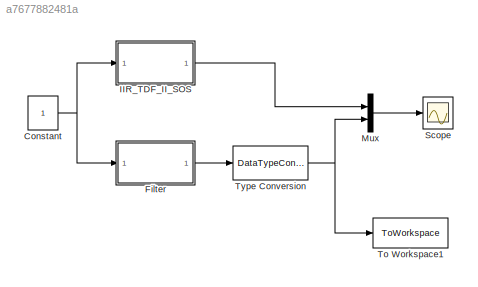
MODEL slx_a7677882481a
KIND model
BLOCK [Constant] Constant
  OutDataTypeStr = double
  SampleTime = 1/50e6
  VectorParams1D = off
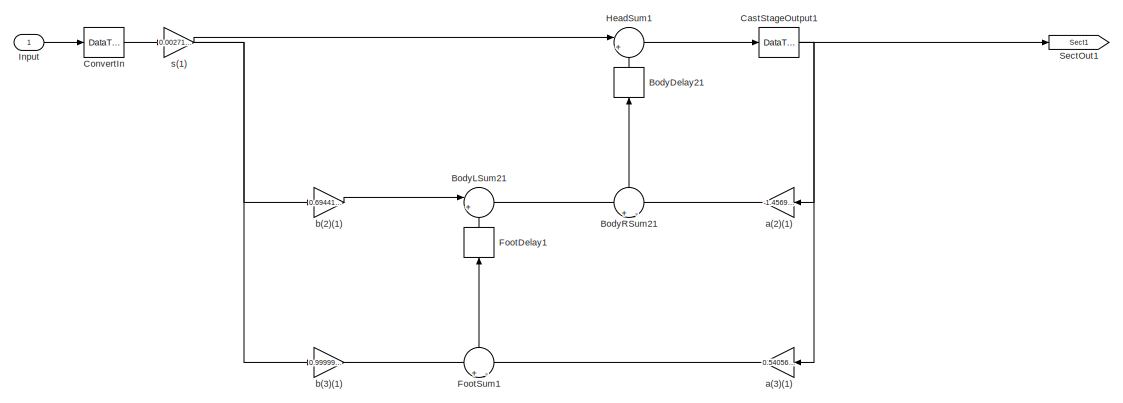
[diagram: Filter - part 1/2, left side, full height]
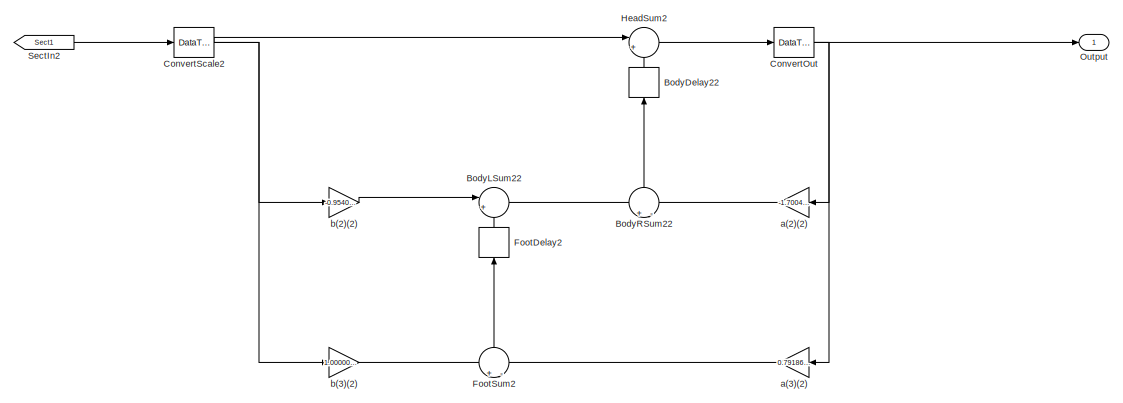
[diagram: Filter - part 2/2, right side, full height]
BLOCK [SubSystem] Filter
  ErrorFcn = dspFilterRealizedInBasicElemsAlgLoopErrFcnCallback
  FunctionWithSeparateData = off
  MaskHideContents = off
  MinAlgLoopOccurrences = off
  Opaque = off
  Ports = [1, 1]
  PropExecContextOutsideSubsystem = off
  RTWSystemCode = Auto
  RequestExecContextInheritance = off
  Tag = FilterWizardSubSystem
  UserDataPersistent = on
BLOCK [Delay] Filter/BodyDelay21
  DelayLength = 1
  InitialCondition = 0
  InputPortMap = u0
  Ports = [1, 1]
BLOCK [Delay] Filter/BodyDelay22
  DelayLength = 1
  InitialCondition = 0
  InputPortMap = u0
  Ports = [1, 1]
BLOCK [Sum] Filter/BodyLSum21
  AccumDataTypeStr = fixdt(1,28,24)
  IconShape = round
  InputSameDT = off
  Inputs = |++
  OutDataTypeStr = fixdt(1,28,24)
  Ports = [2, 1]
  SaturateOnIntegerOverflow = off
BLOCK [Sum] Filter/BodyLSum22
  AccumDataTypeStr = fixdt(1,28,24)
  IconShape = round
  InputSameDT = off
  Inputs = |++
  OutDataTypeStr = fixdt(1,28,24)
  Ports = [2, 1]
  SaturateOnIntegerOverflow = off
BLOCK [Sum] Filter/BodyRSum21
  AccumDataTypeStr = fixdt(1,28,24)
  IconShape = round
  InputSameDT = off
  Inputs = +|-
  OutDataTypeStr = fixdt(1,28,24)
  Ports = [2, 1]
  SaturateOnIntegerOverflow = off
BLOCK [Sum] Filter/BodyRSum22
  AccumDataTypeStr = fixdt(1,28,24)
  IconShape = round
  InputSameDT = off
  Inputs = +|-
  OutDataTypeStr = fixdt(1,28,24)
  Ports = [2, 1]
  SaturateOnIntegerOverflow = off
BLOCK [DataTypeConversion] Filter/CastStageOutput1
  OutDataTypeStr = fixdt(1,15,13)
  RndMeth = Floor
  SaturateOnIntegerOverflow = off
BLOCK [DataTypeConversion] Filter/ConvertIn
  OutDataTypeStr = fixdt(1,14,13)
  RndMeth = Nearest
BLOCK [DataTypeConversion] Filter/ConvertOut
  OutDataTypeStr = fixdt(1,15,13)
  RndMeth = Floor
  SaturateOnIntegerOverflow = off
BLOCK [DataTypeConversion] Filter/ConvertScale2
  OutDataTypeStr = fixdt(1,14,13)
  RndMeth = Floor
  SaturateOnIntegerOverflow = off
BLOCK [Delay] Filter/FootDelay1
  DelayLength = 1
  InitialCondition = 0
  InputPortMap = u0
  Ports = [1, 1]
BLOCK [Delay] Filter/FootDelay2
  DelayLength = 1
  InitialCondition = 0
  InputPortMap = u0
  Ports = [1, 1]
BLOCK [Sum] Filter/FootSum1
  AccumDataTypeStr = fixdt(1,28,24)
  IconShape = round
  InputSameDT = off
  Inputs = +|-
  OutDataTypeStr = fixdt(1,28,24)
  Ports = [2, 1]
  SaturateOnIntegerOverflow = off
BLOCK [Sum] Filter/FootSum2
  AccumDataTypeStr = fixdt(1,28,24)
  IconShape = round
  InputSameDT = off
  Inputs = +|-
  OutDataTypeStr = fixdt(1,28,24)
  Ports = [2, 1]
  SaturateOnIntegerOverflow = off
BLOCK [Sum] Filter/HeadSum1
  AccumDataTypeStr = fixdt(1,28,24)
  IconShape = round
  InputSameDT = off
  Inputs = |++
  OutDataTypeStr = fixdt(1,28,24)
  Ports = [2, 1]
  SaturateOnIntegerOverflow = off
BLOCK [Sum] Filter/HeadSum2
  AccumDataTypeStr = fixdt(1,28,24)
  IconShape = round
  InputSameDT = off
  Inputs = |++
  OutDataTypeStr = fixdt(1,28,24)
  Ports = [2, 1]
  SaturateOnIntegerOverflow = off
BLOCK [Inport] Filter/Input
  IconDisplay = Port number
BLOCK [Outport] Filter/Output
  IconDisplay = Port number
BLOCK [From] Filter/SectIn2
  GotoTag = Sect1
BLOCK [Goto] Filter/SectOut1
  GotoTag = Sect1
BLOCK [Gain] Filter/a(2)(1)
  Gain = -1.4569317354657079
  OutDataTypeStr = fixdt(1,28,24)
  ParamDataTypeStr = fixdt(1,13,11)
  SaturateOnIntegerOverflow = off
BLOCK [Gain] Filter/a(2)(2)
  Gain = -1.7004031510444417
  OutDataTypeStr = fixdt(1,28,24)
  ParamDataTypeStr = fixdt(1,13,11)
  SaturateOnIntegerOverflow = off
BLOCK [Gain] Filter/a(3)(1)
  Gain = 0.54056377155037727
  OutDataTypeStr = fixdt(1,28,24)
  ParamDataTypeStr = fixdt(1,13,11)
  SaturateOnIntegerOverflow = off
BLOCK [Gain] Filter/a(3)(2)
  Gain = 0.79186913438733686
  OutDataTypeStr = fixdt(1,28,24)
  ParamDataTypeStr = fixdt(1,13,11)
  SaturateOnIntegerOverflow = off
BLOCK [Gain] Filter/b(2)(1)
  Gain = 0.6944133180480101
  OutDataTypeStr = fixdt(1,28,24)
  ParamDataTypeStr = fixdt(1,13,11)
  SaturateOnIntegerOverflow = off
BLOCK [Gain] Filter/b(2)(2)
  Gain = -0.95402500633209342
  OutDataTypeStr = fixdt(1,28,24)
  ParamDataTypeStr = fixdt(1,13,11)
  SaturateOnIntegerOverflow = off
BLOCK [Gain] Filter/b(3)(1)
  Gain = 0.99999999999999845
  OutDataTypeStr = fixdt(1,28,24)
  ParamDataTypeStr = fixdt(1,13,11)
  SaturateOnIntegerOverflow = off
BLOCK [Gain] Filter/b(3)(2)
  Gain = 1.0000000000000013
  OutDataTypeStr = fixdt(1,28,24)
  ParamDataTypeStr = fixdt(1,13,11)
  SaturateOnIntegerOverflow = off
BLOCK [Gain] Filter/s(1)
  Gain = 0.0027142307074431711
  OutDataTypeStr = fixdt(1,14,13)
  ParamDataTypeStr = fixdt(1,13,12)
  SaturateOnIntegerOverflow = off
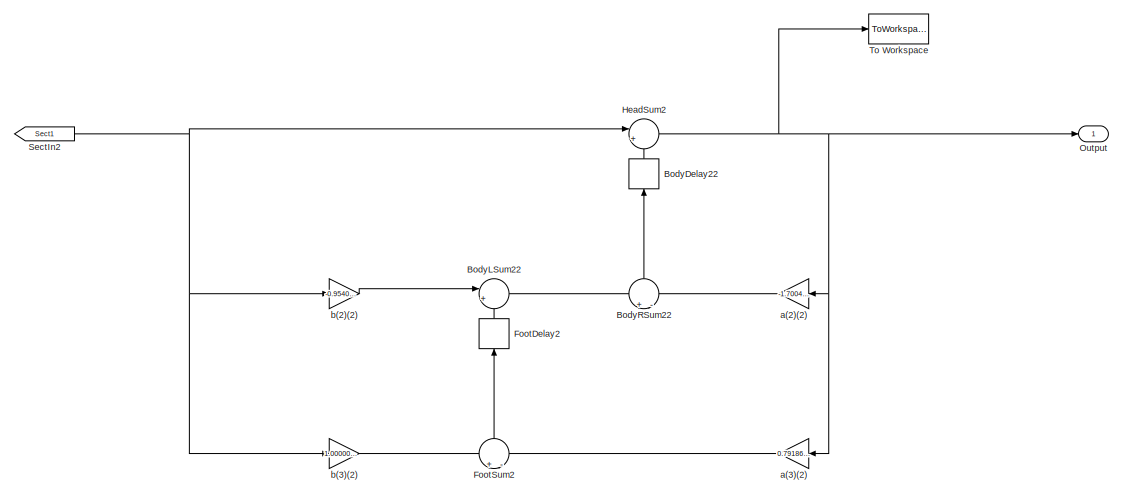
[diagram: IIR_TDF_II_SOS - part 1/2, right side, full height]
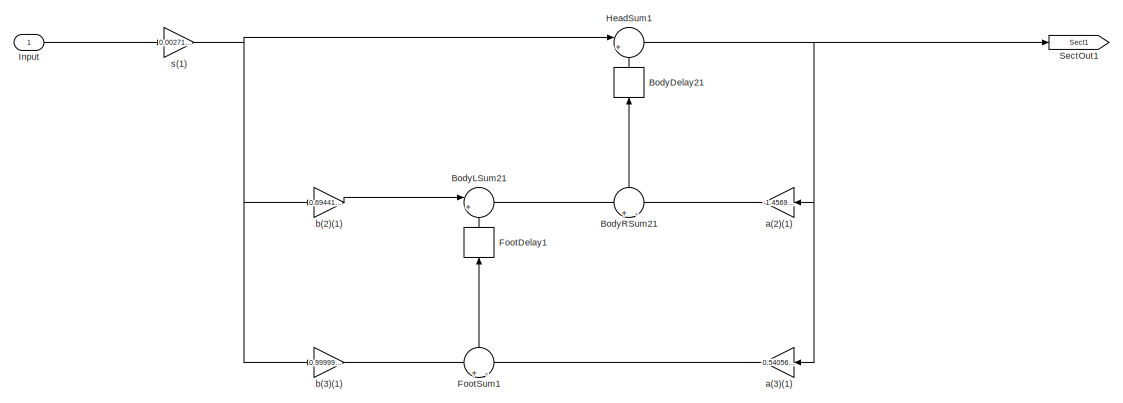
[diagram: IIR_TDF_II_SOS - part 2/2, left side, full height]
BLOCK [SubSystem] IIR_TDF_II_SOS
  ErrorFcn = dspFilterRealizedInBasicElemsAlgLoopErrFcnCallback
  FunctionWithSeparateData = off
  MaskHideContents = off
  MinAlgLoopOccurrences = off
  Opaque = off
  Ports = [1, 1]
  PropExecContextOutsideSubsystem = off
  RTWSystemCode = Auto
  RequestExecContextInheritance = off
  Tag = FilterWizardSubSystem
  UserDataPersistent = on
BLOCK [Delay] IIR_TDF_II_SOS/BodyDelay21
  DelayLength = 1
  InitialCondition = 0
  InputPortMap = u0
  Ports = [1, 1]
BLOCK [Delay] IIR_TDF_II_SOS/BodyDelay22
  DelayLength = 1
  InitialCondition = 0
  InputPortMap = u0
  Ports = [1, 1]
BLOCK [Sum] IIR_TDF_II_SOS/BodyLSum21
  IconShape = round
  InputSameDT = off
  Inputs = |++
  Ports = [2, 1]
  RndMeth = Nearest
BLOCK [Sum] IIR_TDF_II_SOS/BodyLSum22
  IconShape = round
  InputSameDT = off
  Inputs = |++
  Ports = [2, 1]
  RndMeth = Nearest
BLOCK [Sum] IIR_TDF_II_SOS/BodyRSum21
  IconShape = round
  InputSameDT = off
  Inputs = +|-
  Ports = [2, 1]
  RndMeth = Nearest
BLOCK [Sum] IIR_TDF_II_SOS/BodyRSum22
  IconShape = round
  InputSameDT = off
  Inputs = +|-
  Ports = [2, 1]
  RndMeth = Nearest
BLOCK [Delay] IIR_TDF_II_SOS/FootDelay1
  DelayLength = 1
  InitialCondition = 0
  InputPortMap = u0
  Ports = [1, 1]
BLOCK [Delay] IIR_TDF_II_SOS/FootDelay2
  DelayLength = 1
  InitialCondition = 0
  InputPortMap = u0
  Ports = [1, 1]
BLOCK [Sum] IIR_TDF_II_SOS/FootSum1
  IconShape = round
  InputSameDT = off
  Inputs = +|-
  Ports = [2, 1]
  RndMeth = Nearest
BLOCK [Sum] IIR_TDF_II_SOS/FootSum2
  IconShape = round
  InputSameDT = off
  Inputs = +|-
  Ports = [2, 1]
  RndMeth = Nearest
BLOCK [Sum] IIR_TDF_II_SOS/HeadSum1
  IconShape = round
  InputSameDT = off
  Inputs = |++
  Ports = [2, 1]
  RndMeth = Nearest
BLOCK [Sum] IIR_TDF_II_SOS/HeadSum2
  IconShape = round
  InputSameDT = off
  Inputs = |++
  Ports = [2, 1]
  RndMeth = Nearest
BLOCK [Inport] IIR_TDF_II_SOS/Input
  IconDisplay = Port number
BLOCK [Outport] IIR_TDF_II_SOS/Output
  IconDisplay = Port number
BLOCK [From] IIR_TDF_II_SOS/SectIn2
  GotoTag = Sect1
BLOCK [Goto] IIR_TDF_II_SOS/SectOut1
  GotoTag = Sect1
BLOCK [ToWorkspace] IIR_TDF_II_SOS/To Workspace
  MaxDataPoints = inf
  Ports = [1]
  SampleTime = -1
  SaveFormat = Timeseries
  VariableName = node
BLOCK [Gain] IIR_TDF_II_SOS/a(2)(1)
  Gain = -1.4569317354657079
  ParamDataTypeStr = double
  RndMeth = Nearest
BLOCK [Gain] IIR_TDF_II_SOS/a(2)(2)
  Gain = -1.7004031510444417
  ParamDataTypeStr = double
  RndMeth = Nearest
BLOCK [Gain] IIR_TDF_II_SOS/a(3)(1)
  Gain = 0.54056377155037727
  ParamDataTypeStr = double
  RndMeth = Nearest
BLOCK [Gain] IIR_TDF_II_SOS/a(3)(2)
  Gain = 0.79186913438733686
  ParamDataTypeStr = double
  RndMeth = Nearest
BLOCK [Gain] IIR_TDF_II_SOS/b(2)(1)
  Gain = 0.6944133180480101
  ParamDataTypeStr = double
  RndMeth = Nearest
BLOCK [Gain] IIR_TDF_II_SOS/b(2)(2)
  Gain = -0.95402500633209342
  ParamDataTypeStr = double
  RndMeth = Nearest
BLOCK [Gain] IIR_TDF_II_SOS/b(3)(1)
  Gain = 0.99999999999999845
  ParamDataTypeStr = double
  RndMeth = Nearest
BLOCK [Gain] IIR_TDF_II_SOS/b(3)(2)
  Gain = 1.0000000000000013
  ParamDataTypeStr = double
  RndMeth = Nearest
BLOCK [Gain] IIR_TDF_II_SOS/s(1)
  Gain = 0.0027142307074431711
  ParamDataTypeStr = double
  RndMeth = Nearest
BLOCK [Mux] Mux
  DisplayOption = bar
  Inputs = 2
  Ports = [2, 1]
BLOCK [Scope] Scope
  DataFormat = StructureWithTime
  Floating = off
  LimitDataPoints = off
  NumInputPorts = 1
  Ports = [1]
  SampleTime = 0
  ShowLegends = off
  YMax = 0.85
  YMin = 0.1
  ZoomMode = xonly
BLOCK [ToWorkspace] To Workspace1
  MaxDataPoints = inf
  Ports = [1]
  SampleTime = -1
  SaveFormat = Timeseries
  VariableName = IIR_Output
BLOCK [DataTypeConversion] Type Conversion
  OutDataTypeStr = double
  RndMeth = Floor
  SaturateOnIntegerOverflow = off
NET Constant:1 -> Filter:1, IIR_TDF_II_SOS:1
LINE Filter/BodyDelay21:1 -> Filter/HeadSum1:2
LINE Filter/BodyDelay22:1 -> Filter/HeadSum2:2
LINE Filter/BodyLSum21:1 -> Filter/BodyRSum21:1
LINE Filter/BodyLSum22:1 -> Filter/BodyRSum22:1
LINE Filter/BodyRSum21:1 -> Filter/BodyDelay21:1
LINE Filter/BodyRSum22:1 -> Filter/BodyDelay22:1
NET Filter/CastStageOutput1:1 -> Filter/SectOut1:1, Filter/a(2)(1):1, Filter/a(3)(1):1
LINE Filter/ConvertIn:1 -> Filter/s(1):1
NET Filter/ConvertOut:1 -> Filter/Output:1, Filter/a(2)(2):1, Filter/a(3)(2):1
NET Filter/ConvertScale2:1 -> Filter/HeadSum2:1, Filter/b(2)(2):1, Filter/b(3)(2):1
LINE Filter/FootDelay1:1 -> Filter/BodyLSum21:2
LINE Filter/FootDelay2:1 -> Filter/BodyLSum22:2
LINE Filter/FootSum1:1 -> Filter/FootDelay1:1
LINE Filter/FootSum2:1 -> Filter/FootDelay2:1
LINE Filter/HeadSum1:1 -> Filter/CastStageOutput1:1
LINE Filter/HeadSum2:1 -> Filter/ConvertOut:1
LINE Filter/Input:1 -> Filter/ConvertIn:1
LINE Filter/SectIn2:1 -> Filter/ConvertScale2:1
LINE Filter/a(2)(1):1 -> Filter/BodyRSum21:2
LINE Filter/a(2)(2):1 -> Filter/BodyRSum22:2
LINE Filter/a(3)(1):1 -> Filter/FootSum1:2
LINE Filter/a(3)(2):1 -> Filter/FootSum2:2
LINE Filter/b(2)(1):1 -> Filter/BodyLSum21:1
LINE Filter/b(2)(2):1 -> Filter/BodyLSum22:1
LINE Filter/b(3)(1):1 -> Filter/FootSum1:1
LINE Filter/b(3)(2):1 -> Filter/FootSum2:1
NET Filter/s(1):1 -> Filter/HeadSum1:1, Filter/b(2)(1):1, Filter/b(3)(1):1
LINE Filter:1 -> Type Conversion:1
LINE IIR_TDF_II_SOS/BodyDelay21:1 -> IIR_TDF_II_SOS/HeadSum1:2
LINE IIR_TDF_II_SOS/BodyDelay22:1 -> IIR_TDF_II_SOS/HeadSum2:2
LINE IIR_TDF_II_SOS/BodyLSum21:1 -> IIR_TDF_II_SOS/BodyRSum21:1
LINE IIR_TDF_II_SOS/BodyLSum22:1 -> IIR_TDF_II_SOS/BodyRSum22:1
LINE IIR_TDF_II_SOS/BodyRSum21:1 -> IIR_TDF_II_SOS/BodyDelay21:1
LINE IIR_TDF_II_SOS/BodyRSum22:1 -> IIR_TDF_II_SOS/BodyDelay22:1
LINE IIR_TDF_II_SOS/FootDelay1:1 -> IIR_TDF_II_SOS/BodyLSum21:2
LINE IIR_TDF_II_SOS/FootDelay2:1 -> IIR_TDF_II_SOS/BodyLSum22:2
LINE IIR_TDF_II_SOS/FootSum1:1 -> IIR_TDF_II_SOS/FootDelay1:1
LINE IIR_TDF_II_SOS/FootSum2:1 -> IIR_TDF_II_SOS/FootDelay2:1
NET IIR_TDF_II_SOS/HeadSum1:1 -> IIR_TDF_II_SOS/SectOut1:1, IIR_TDF_II_SOS/a(2)(1):1, IIR_TDF_II_SOS/a(3)(1):1
NET IIR_TDF_II_SOS/HeadSum2:1 -> IIR_TDF_II_SOS/Output:1, IIR_TDF_II_SOS/To Workspace:1, IIR_TDF_II_SOS/a(2)(2):1, IIR_TDF_II_SOS/a(3)(2):1
LINE IIR_TDF_II_SOS/Input:1 -> IIR_TDF_II_SOS/s(1):1
NET IIR_TDF_II_SOS/SectIn2:1 -> IIR_TDF_II_SOS/HeadSum2:1, IIR_TDF_II_SOS/b(2)(2):1, IIR_TDF_II_SOS/b(3)(2):1
LINE IIR_TDF_II_SOS/a(2)(1):1 -> IIR_TDF_II_SOS/BodyRSum21:2
LINE IIR_TDF_II_SOS/a(2)(2):1 -> IIR_TDF_II_SOS/BodyRSum22:2
LINE IIR_TDF_II_SOS/a(3)(1):1 -> IIR_TDF_II_SOS/FootSum1:2
LINE IIR_TDF_II_SOS/a(3)(2):1 -> IIR_TDF_II_SOS/FootSum2:2
LINE IIR_TDF_II_SOS/b(2)(1):1 -> IIR_TDF_II_SOS/BodyLSum21:1
LINE IIR_TDF_II_SOS/b(2)(2):1 -> IIR_TDF_II_SOS/BodyLSum22:1
LINE IIR_TDF_II_SOS/b(3)(1):1 -> IIR_TDF_II_SOS/FootSum1:1
LINE IIR_TDF_II_SOS/b(3)(2):1 -> IIR_TDF_II_SOS/FootSum2:1
NET IIR_TDF_II_SOS/s(1):1 -> IIR_TDF_II_SOS/HeadSum1:1, IIR_TDF_II_SOS/b(2)(1):1, IIR_TDF_II_SOS/b(3)(1):1
LINE IIR_TDF_II_SOS:1 -> Mux:1
LINE Mux:1 -> Scope:1
NET Type Conversion:1 -> Mux:2, To Workspace1:1
note: NET lines group one-source signal fan-out (src -> all destinations, sorted); 1:1 wires keep LINE
